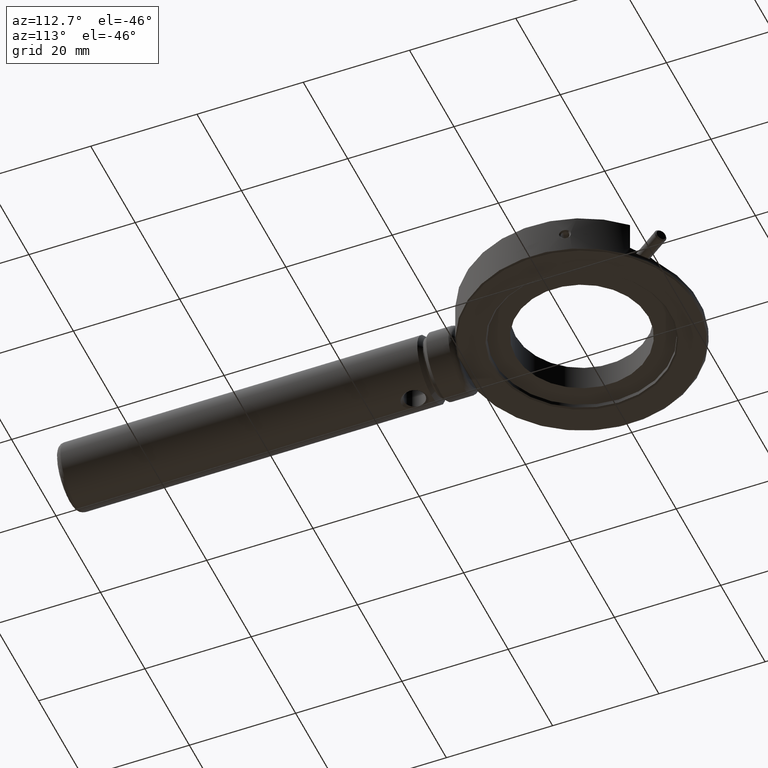
[diagram: clean part render]
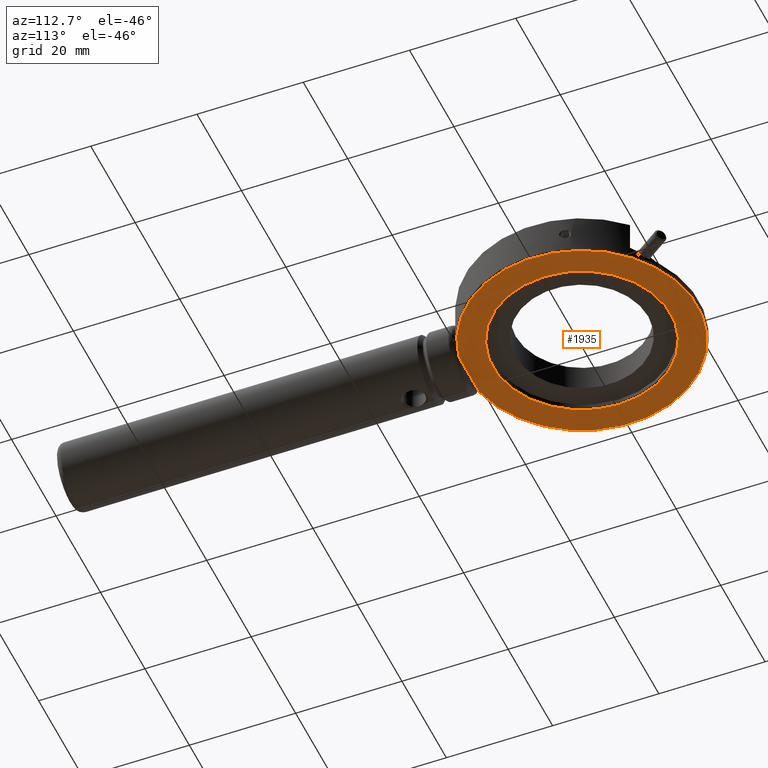
[diagram: same view with one face highlighted and labeled with its STEP entity id]
A machine part, auxiliary view. The second image highlights one B-rep face of the part: STEP entity #1935.
In plain terms, the highlighted planar face has unit normal (0, 0, 1).
Its self-contained STEP definition (entity closure, byte-faithful):
#16 = CARTESIAN_POINT ( 'NONE',  ( 0.03631047345558845174, 37.75000000000000000, -4.000000000000000000 ) ) ;
#25 = EDGE_CURVE ( 'NONE', #1910, #1993, #2437, .T. ) ;
#260 = AXIS2_PLACEMENT_3D ( 'NONE', #1010, #2094, #2599 ) ;
#391 = DIRECTION ( 'NONE',  ( 0.000000000000000000, -1.000000000000000000, 0.000000000000000000 ) ) ;
#587 = FACE_OUTER_BOUND ( 'NONE', #2449, .T. ) ;
#603 = DIRECTION ( 'NONE',  ( 1.000000000000000000, 0.000000000000000000, 0.000000000000000000 ) ) ;
#619 = CARTESIAN_POINT ( 'NONE',  ( 0.03631047345558845174, 59.00000000000000000, -4.000000000000000000 ) ) ;
#658 = EDGE_LOOP ( 'NONE', ( #2716 ) ) ;
#944 = ORIENTED_EDGE ( 'NONE', *, *, #25, .F. ) ;
#1010 = CARTESIAN_POINT ( 'NONE',  ( 0.03631047345558845174, 59.00000000000000000, -4.000000000000000000 ) ) ;
#1098 = CARTESIAN_POINT ( 'NONE',  ( -16.71368952654441387, 59.00000000000000000, -4.000000000000000000 ) ) ;
#1131 = PLANE ( 'NONE',  #2046 ) ;
#1232 = DIRECTION ( 'NONE',  ( 0.000000000000000000, -9.856383386231858211E-18, 1.000000000000000000 ) ) ;
#1718 = CARTESIAN_POINT ( 'NONE',  ( -4.600498774292249848, 37.75000000000000000, -4.000000000000000000 ) ) ;
#1789 = CIRCLE ( 'NONE', #260, 16.75000000000000000 ) ;
#1900 = VERTEX_POINT ( 'NONE', #1098 ) ;
#1910 = VERTEX_POINT ( 'NONE', #1718 ) ;
#1935 = ADVANCED_FACE ( 'NONE', ( #1955, #587 ), #1131, .F. ) ;
#1937 = DIRECTION ( 'NONE',  ( 1.000000000000000000, 0.000000000000000000, 0.000000000000000000 ) ) ;
#1955 = FACE_BOUND ( 'NONE', #658, .T. ) ;
#1993 = VERTEX_POINT ( 'NONE', #2745 ) ;
#2046 = AXIS2_PLACEMENT_3D ( 'NONE', #619, #2797, #603 ) ;
#2094 = DIRECTION ( 'NONE',  ( 0.000000000000000000, 0.000000000000000000, -1.000000000000000000 ) ) ;
#2258 = CIRCLE ( 'NONE', #3341, 21.75000000000000000 ) ;
#2437 = LINE ( 'NONE', #16, #2646 ) ;
#2449 = EDGE_LOOP ( 'NONE', ( #2839, #944 ) ) ;
#2599 = DIRECTION ( 'NONE',  ( -1.000000000000000000, 0.000000000000000000, 0.000000000000000000 ) ) ;
#2646 = VECTOR ( 'NONE', #1937, 1000.000000000000000 ) ;
#2716 = ORIENTED_EDGE ( 'NONE', *, *, #3386, .F. ) ;
#2745 = CARTESIAN_POINT ( 'NONE',  ( 4.673119721203429222, 37.75000000000000000, -4.000000000000000000 ) ) ;
#2778 = CARTESIAN_POINT ( 'NONE',  ( 0.03631047345558845174, 59.00000000000000000, -4.000000000000000000 ) ) ;
#2797 = DIRECTION ( 'NONE',  ( 0.000000000000000000, 0.000000000000000000, 1.000000000000000000 ) ) ;
#2839 = ORIENTED_EDGE ( 'NONE', *, *, #2990, .F. ) ;
#2990 = EDGE_CURVE ( 'NONE', #1993, #1910, #2258, .T. ) ;
#3341 = AXIS2_PLACEMENT_3D ( 'NONE', #2778, #1232, #391 ) ;
#3386 = EDGE_CURVE ( 'NONE', #1900, #1900, #1789, .T. ) ;